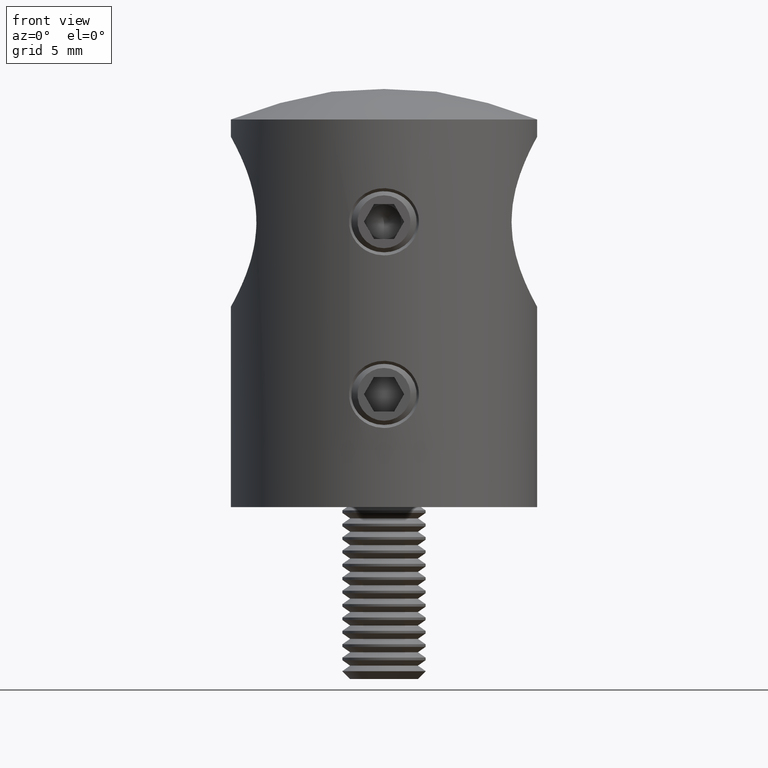
[diagram: clean part render]
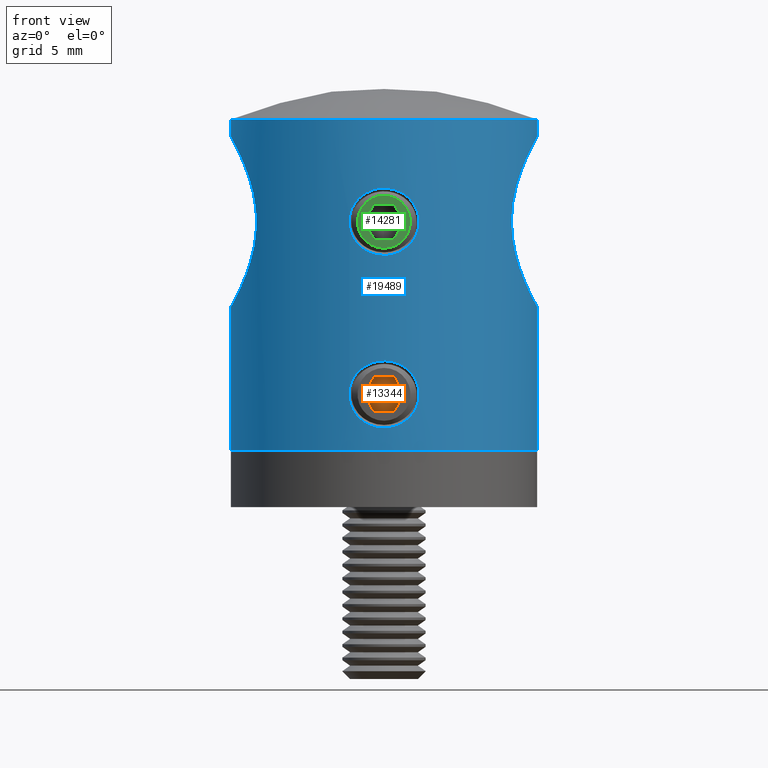
[diagram: same view with three faces highlighted in distinct colors, each labeled with its STEP entity id]
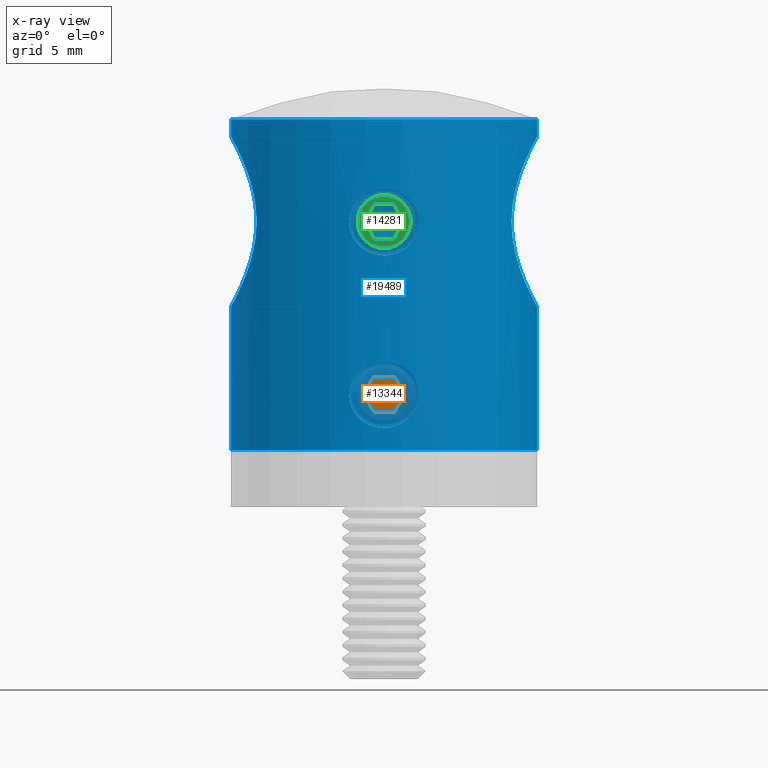
[diagram: x-ray of the same camera — body ghosted, the three highlighted faces saturated]
A machine part, front view with three faces highlighted in distinct colors.
The next image is the same camera in x-ray (body ghosted, the three faces saturated) — at least one of them is partly hidden behind the body in this view.
Their STEP definitions:

[orange] entity #13344 — the highlighted planar face has unit normal (0, -1, 0).
#344 = LINE ( 'NONE', #12696, #1133 ) ;
#1133 = VECTOR ( 'NONE', #16021, 1000.000000000000100 ) ;
#1794 = LINE ( 'NONE', #3753, #5854 ) ;
#3153 = ORIENTED_EDGE ( 'NONE', *, *, #15414, .T. ) ;
#3636 = PLANE ( 'NONE',  #20685 ) ;
#3753 = CARTESIAN_POINT ( 'NONE',  ( 3.000000000000000000, -1.443375672974064500, -3.918605484130491800E-016 ) ) ;
#4233 = DIRECTION ( 'NONE',  ( 0.0000000000000000000, 0.5000000000000001100, 0.8660254037844386000 ) ) ;
#4547 = DIRECTION ( 'NONE',  ( 0.0000000000000000000, -0.5000000000000001100, -0.8660254037844386000 ) ) ;
#4886 = CARTESIAN_POINT ( 'NONE',  ( 3.000000000000000000, 0.7216878364870326100, 1.250000000000000000 ) ) ;
#4946 = EDGE_LOOP ( 'NONE', ( #16603, #14391, #21229, #3153, #18370, #13923 ) ) ;
#5854 = VECTOR ( 'NONE', #17678, 1000.000000000000100 ) ;
#7053 = EDGE_CURVE ( 'NONE', #10747, #13678, #11564, .T. ) ;
#7076 = VERTEX_POINT ( 'NONE', #8689 ) ;
#7499 = VERTEX_POINT ( 'NONE', #14713 ) ;
#7625 = LINE ( 'NONE', #21490, #8160 ) ;
#8160 = VECTOR ( 'NONE', #4547, 1000.000000000000100 ) ;
#8265 = LINE ( 'NONE', #17504, #18535 ) ;
#8689 = CARTESIAN_POINT ( 'NONE',  ( 3.000000000000000000, 1.443375672974064800, -2.114391246060425900E-016 ) ) ;
#8888 = CARTESIAN_POINT ( 'NONE',  ( 3.000000000000000000, -0.7216878364870333900, -1.249999999999999800 ) ) ;
#9253 = DIRECTION ( 'NONE',  ( 0.0000000000000000000, -1.000000000000000000, 0.0000000000000000000 ) ) ;
#10747 = VERTEX_POINT ( 'NONE', #8888 ) ;
#10863 = VECTOR ( 'NONE', #4233, 1000.000000000000000 ) ;
#11277 = CARTESIAN_POINT ( 'NONE',  ( 3.000000000000000000, 0.7216878364870326100, -1.249999999999999800 ) ) ;
#11564 = LINE ( 'NONE', #18731, #21809 ) ;
#12696 = CARTESIAN_POINT ( 'NONE',  ( 3.000000000000000000, 1.443375672974064800, -2.114391246060425900E-016 ) ) ;
#13033 = LINE ( 'NONE', #11277, #10863 ) ;
#13344 = ADVANCED_FACE ( 'NONE', ( #16851 ), #3636, .T. ) ;
#13678 = VERTEX_POINT ( 'NONE', #21464 ) ;
#13864 = CARTESIAN_POINT ( 'NONE',  ( 3.000000000000000000, -2.165063509461096400, -1.249999999999999800 ) ) ;
#13923 = ORIENTED_EDGE ( 'NONE', *, *, #22368, .T. ) ;
#14365 = EDGE_CURVE ( 'NONE', #7076, #15828, #344, .T. ) ;
#14391 = ORIENTED_EDGE ( 'NONE', *, *, #20423, .T. ) ;
#14713 = CARTESIAN_POINT ( 'NONE',  ( 3.000000000000000000, -1.443375672974064500, -3.918605484130491800E-016 ) ) ;
#15414 = EDGE_CURVE ( 'NONE', #13678, #7076, #13033, .T. ) ;
#15828 = VERTEX_POINT ( 'NONE', #4886 ) ;
#16021 = DIRECTION ( 'NONE',  ( 0.0000000000000000000, -0.4999999999999998900, 0.8660254037844387100 ) ) ;
#16603 = ORIENTED_EDGE ( 'NONE', *, *, #19221, .T. ) ;
#16851 = FACE_OUTER_BOUND ( 'NONE', #4946, .T. ) ;
#17262 = DIRECTION ( 'NONE',  ( 0.0000000000000000000, 0.0000000000000000000, -1.000000000000000000 ) ) ;
#17504 = CARTESIAN_POINT ( 'NONE',  ( 3.000000000000000000, 0.7216878364870326100, 1.250000000000000000 ) ) ;
#17678 = DIRECTION ( 'NONE',  ( 0.0000000000000000000, 0.4999999999999996100, -0.8660254037844388200 ) ) ;
#18217 = VERTEX_POINT ( 'NONE', #18733 ) ;
#18370 = ORIENTED_EDGE ( 'NONE', *, *, #14365, .T. ) ;
#18535 = VECTOR ( 'NONE', #9253, 1000.000000000000000 ) ;
#18731 = CARTESIAN_POINT ( 'NONE',  ( 3.000000000000000000, -0.7216878364870333900, -1.249999999999999800 ) ) ;
#18733 = CARTESIAN_POINT ( 'NONE',  ( 3.000000000000000000, -0.7216878364870318300, 1.250000000000000000 ) ) ;
#19057 = DIRECTION ( 'NONE',  ( 1.000000000000000000, -0.0000000000000000000, 0.0000000000000000000 ) ) ;
#19221 = EDGE_CURVE ( 'NONE', #18217, #7499, #7625, .T. ) ;
#20423 = EDGE_CURVE ( 'NONE', #7499, #10747, #1794, .T. ) ;
#20685 = AXIS2_PLACEMENT_3D ( 'NONE', #13864, #19057, #17262 ) ;
#20762 = DIRECTION ( 'NONE',  ( 0.0000000000000000000, 1.000000000000000000, 0.0000000000000000000 ) ) ;
#21229 = ORIENTED_EDGE ( 'NONE', *, *, #7053, .T. ) ;
#21464 = CARTESIAN_POINT ( 'NONE',  ( 3.000000000000000000, 0.7216878364870326100, -1.249999999999999800 ) ) ;
#21490 = CARTESIAN_POINT ( 'NONE',  ( 3.000000000000000000, -0.7216878364870318300, 1.250000000000000000 ) ) ;
#21809 = VECTOR ( 'NONE', #20762, 1000.000000000000000 ) ;
#22368 = EDGE_CURVE ( 'NONE', #15828, #18217, #8265, .T. ) ;

[blue] entity #19489 — the highlighted cylindrical surface (bore or boss wall) has radius 11 mm, axis along (0, 0, 1).
#45 = CARTESIAN_POINT ( 'NONE',  ( 9.648512081601326800, 5.288360497444990900, 13.33447340568118200 ) ) ;
#105 = DIRECTION ( 'NONE',  ( 1.000000000000000000, 0.0000000000000000000, 0.0000000000000000000 ) ) ;
#120 = CARTESIAN_POINT ( 'NONE',  ( 9.882311817479491700, -4.833099761158375300, 12.67314814702374700 ) ) ;
#193 = CARTESIAN_POINT ( 'NONE',  ( 9.541437754094053100, -5.476577152540515100, 19.11591475201605700 ) ) ;
#293 = CARTESIAN_POINT ( 'NONE',  ( -1.397269774137160900, -10.91089534265097100, 14.39305190935820100 ) ) ;
#419 = CARTESIAN_POINT ( 'NONE',  ( 11.00000000000000000, -3.252606517456513300E-016, 10.29999999999999700 ) ) ;
#664 = CARTESIAN_POINT ( 'NONE',  ( 0.002621827913309108200, -10.99999968754628400, 18.81515378352823500 ) ) ;
#735 = CARTESIAN_POINT ( 'NONE',  ( 1.543890676010139400, -10.89363039259130200, 14.46927644187164600 ) ) ;
#753 = CARTESIAN_POINT ( 'NONE',  ( -0.9635496633443911800, -10.95771746515983500, 1.769627895335405900 ) ) ;
#802 = CARTESIAN_POINT ( 'NONE',  ( -1.268443744548116500, -10.93091935411460000, 18.50864464349973900 ) ) ;
#825 = CARTESIAN_POINT ( 'NONE',  ( -1.268443744210112200, -10.93091935414430800, 6.108644643610253100 ) ) ;
#874 = CARTESIAN_POINT ( 'NONE',  ( -2.463083399544349300, -10.72069121684273800, 16.87296431255212400 ) ) ;
#898 = CARTESIAN_POINT ( 'NONE',  ( -1.261211241404091900, -10.92831925419361200, 1.905472548706967000 ) ) ;
#949 = VERTEX_POINT ( 'NONE', #9815 ) ;
#999 = CARTESIAN_POINT ( 'NONE',  ( -9.404246883826671100, 5.706848822141821200, 18.56371187619917200 ) ) ;
#1046 = CARTESIAN_POINT ( 'NONE',  ( 0.8106894968027548200, -10.97114265804646700, 1.708653337313666300 ) ) ;
#1117 = B_SPLINE_CURVE_WITH_KNOTS ( 'NONE', 3,
 ( #12933, #21588, #21374, #753, #9224, #898, #21300, #11035, #2402, #2552, #14532, #16332, #12857, #13007, #2627, #4142, #2474, #14459, #21448, #18072, #16256, #17995, #6108, #12713, #2332, #9447, #14750, #4357, #9378, #19705, #16184, #7719, #19780, #21525, #11183, #825, #14678, #13375, #7941, #19997, #18570, #1195, #4651, #9739, #18505, #19933, #6407, #16771, #9596, #21802, #9667, #2917, #16695, #2848, #8154, #16548, #21731, #6333, #6184, #8013, #11476, #8084, #18428, #2991, #20223, #9887, #4727, #18282, #6470, #21941, #11403, #11621, #18354, #21662, #11326, #1273, #20147, #15111, #14817, #1046, #20072, #1123, #16838, #13153, #13225 ),
 .UNSPECIFIED., .T., .F.,
 ( 4, 3, 3, 3, 3, 3, 3, 3, 3, 3, 3, 3, 3, 3, 3, 3, 3, 3, 3, 3, 3, 3, 3, 3, 3, 3, 3, 3, 4 ),
 ( 0.0000000000000000000, 0.03571428571428571200, 0.07142857142857142500, 0.1071428571428571400, 0.1428571428571428500, 0.1785714285714285800, 0.2142857142857142700, 0.2500000000000000000, 0.2857142857142857000, 0.3214285714285714500, 0.3571428571428571500, 0.3928571428571428500, 0.4285714285714285500, 0.4642857142857143000, 0.5000000000000000000, 0.5357142857142857000, 0.5714285714285714000, 0.6071428571428571000, 0.6428571428571429000, 0.6785714285714286000, 0.7142857142857143000, 0.7500000000000000000, 0.7857142857142857000, 0.8214285714285714000, 0.8571428571428571000, 0.8928571428571429000, 0.9285714285714286000, 0.9642857142857143000, 1.000000000000000000 ),
 .UNSPECIFIED. ) ;
#1123 = CARTESIAN_POINT ( 'NONE',  ( 0.4897246382423631200, -10.98909321912860500, 1.631196561732932500 ) ) ;
#1148 = CARTESIAN_POINT ( 'NONE',  ( -10.56075521959791700, 3.096678220883588600, 21.67043277127627500 ) ) ;
#1195 = CARTESIAN_POINT ( 'NONE',  ( -0.1616220107861330000, -11.00003883473656800, 6.415315291332948500 ) ) ;
#1222 = CARTESIAN_POINT ( 'NONE',  ( -9.882311817479486400, 4.833099761158372600, 12.67314814702374400 ) ) ;
#1273 = CARTESIAN_POINT ( 'NONE',  ( 1.774878405260975000, -10.85586508052390200, 2.291099913721534000 ) ) ;
#1316 = CARTESIAN_POINT ( 'NONE',  ( 10.97695157601235900, -0.8154917404544900200, 10.34128971045530300 ) ) ;
#1391 = CARTESIAN_POINT ( 'NONE',  ( 10.99999999999999800, -0.4119544153468471200, 10.29999999999999500 ) ) ;
#1412 = EDGE_LOOP ( 'NONE', ( #21979 ) ) ;
#1442 = CARTESIAN_POINT ( 'NONE',  ( -9.154733802318572700, -6.098430320488778200, 16.82884321834455600 ) ) ;
#1591 = CARTESIAN_POINT ( 'NONE',  ( -10.56848592839725500, -3.070138311554853100, 21.68581601544170900 ) ) ;
#1614 = CARTESIAN_POINT ( 'NONE',  ( 10.22984273932647900, -4.054541376369454200, 20.97407856064159400 ) ) ;
#1689 = CARTESIAN_POINT ( 'NONE',  ( 9.205781148332759400, -6.021279925512389200, 17.39743835238008900 ) ) ;
#1767 = CARTESIAN_POINT ( 'NONE',  ( 9.875328383823170200, 4.851642139667733400, 12.68169681171467100 ) ) ;
#1844 = CARTESIAN_POINT ( 'NONE',  ( 9.362046769079290300, -5.775541901457285300, 18.37322836746236700 ) ) ;
#1915 = CARTESIAN_POINT ( 'NONE',  ( 9.655843362379474800, 5.275096090437347000, 19.48856493924066800 ) ) ;
#2014 = CARTESIAN_POINT ( 'NONE',  ( -1.533328306870229700, -10.89347143110832900, 14.48063127000943600 ) ) ;
#2088 = CARTESIAN_POINT ( 'NONE',  ( -1.777212278540741600, -10.85548324659036000, 14.69334404728969000 ) ) ;
#2238 = CARTESIAN_POINT ( 'NONE',  ( -2.463094693421274500, -10.72068862206341100, 15.92709007112410400 ) ) ;
#2282 = EDGE_CURVE ( 'NONE', #949, #949, #10541, .T. ) ;
#2284 = CARTESIAN_POINT ( 'NONE',  ( 10.34725143670187500, 3.748763762359424300, 11.57160730895325100 ) ) ;
#2308 = CARTESIAN_POINT ( 'NONE',  ( 2.089123661313935900, -10.79979455025595500, 17.74076931704600600 ) ) ;
#2332 = CARTESIAN_POINT ( 'NONE',  ( -2.463083399544349300, -10.72069121684273800, 4.472964312552125700 ) ) ;
#2378 = CARTESIAN_POINT ( 'NONE',  ( 1.995493121756457100, -10.81788920119303300, 14.92473889477621200 ) ) ;
#2402 = CARTESIAN_POINT ( 'NONE',  ( -1.661524859658452900, -10.87442308525437100, 2.181962713599229900 ) ) ;
#2453 = CARTESIAN_POINT ( 'NONE',  ( 0.3284569030260461900, -10.99628005262925400, 14.00036723653772300 ) ) ;
#2474 = CARTESIAN_POINT ( 'NONE',  ( -2.382999229848468600, -10.73896813810681100, 3.220662270662221900 ) ) ;
#2528 = CARTESIAN_POINT ( 'NONE',  ( 2.256830909749577800, -10.76619328780971300, 17.47192719234511700 ) ) ;
#2544 = VERTEX_POINT ( 'NONE', #8158 ) ;
#2552 = CARTESIAN_POINT ( 'NONE',  ( -1.777212278540741600, -10.85548324659036000, 2.293344047289692400 ) ) ;
#2602 = CARTESIAN_POINT ( 'NONE',  ( -2.020667218593132300E-015, -10.99999999999999800, 13.98484490069484600 ) ) ;
#2627 = CARTESIAN_POINT ( 'NONE',  ( -2.257482614945340400, -10.76605286276967800, 2.929546619533276000 ) ) ;
#2728 = CARTESIAN_POINT ( 'NONE',  ( -9.647514933004703900, 5.290201444760914900, 19.46247388205959400 ) ) ;
#2800 = CARTESIAN_POINT ( 'NONE',  ( -11.00000000000000000, -4.065758146820641600E-016, 10.29999999999999900 ) ) ;
#2802 = DIRECTION ( 'NONE',  ( -0.0000000000000000000, -0.0000000000000000000, 1.000000000000000000 ) ) ;
#2848 = CARTESIAN_POINT ( 'NONE',  ( 1.998357958369267700, -10.81735236367315700, 5.471525135721878800 ) ) ;
#2854 = ORIENTED_EDGE ( 'NONE', *, *, #21187, .T. ) ;
#2917 = CARTESIAN_POINT ( 'NONE',  ( 1.777126563584013900, -10.85549727912102600, 5.706738476233899100 ) ) ;
#2991 = CARTESIAN_POINT ( 'NONE',  ( 2.511715917072544300, -10.70940162436372500, 3.998297708608496300 ) ) ;
#3089 = CARTESIAN_POINT ( 'NONE',  ( -9.996537732736378200, -4.599883052709786000, 12.37464005127819400 ) ) ;
#3164 = CARTESIAN_POINT ( 'NONE',  ( -9.648512081601317900, -5.288360497444989200, 13.33447340568118400 ) ) ;
#3317 = CARTESIAN_POINT ( 'NONE',  ( -10.88660539605092800, -1.587461163400290900, 22.29327081037906300 ) ) ;
#3345 = CARTESIAN_POINT ( 'NONE',  ( 10.90835395832875700, -1.431035666601241800, 22.33324243480163700 ) ) ;
#3391 = CARTESIAN_POINT ( 'NONE',  ( -10.88034175087272000, 1.629824696895270100, 22.28170272155429300 ) ) ;
#3419 = CARTESIAN_POINT ( 'NONE',  ( 9.994595874194324400, -4.596398108278324700, 20.41514637220333500 ) ) ;
#3478 = CARTESIAN_POINT ( 'NONE',  ( 0.0000000000000000000, 0.0000000000000000000, 25.99999999999999600 ) ) ;
#3491 = CARTESIAN_POINT ( 'NONE',  ( 9.823416292433384100, -4.951332716768896500, 12.83170122485886600 ) ) ;
#3568 = CARTESIAN_POINT ( 'NONE',  ( 10.81560744150687200, -2.015142880694794400, 22.16107234963544000 ) ) ;
#3646 = CARTESIAN_POINT ( 'NONE',  ( 10.65712405073123900, -2.750588877777293100, 21.85910216543438600 ) ) ;
#3652 = CARTESIAN_POINT ( 'NONE',  ( 11.00000000000000000, 0.0000000000000000000, 10.29999999999999900 ) ) ;
#3804 = CARTESIAN_POINT ( 'NONE',  ( 11.00000000000000000, 0.4119544153468421300, 10.30000000000000100 ) ) ;
#3943 = AXIS2_PLACEMENT_3D ( 'NONE', #3478, #6807, #105 ) ;
#3979 = CARTESIAN_POINT ( 'NONE',  ( -2.495562452213592400, -10.71322910456338400, 16.08336297108577600 ) ) ;
#4044 = CARTESIAN_POINT ( 'NONE',  ( 2.495297978060719400, -10.71329013739285700, 16.08204341393588500 ) ) ;
#4116 = CARTESIAN_POINT ( 'NONE',  ( 1.774878405260975000, -10.85586508052390200, 14.69109991372153200 ) ) ;
#4142 = CARTESIAN_POINT ( 'NONE',  ( -2.320240922396904300, -10.75251050043824500, 3.075104445097748900 ) ) ;
#4191 = CARTESIAN_POINT ( 'NONE',  ( 2.320207892953276600, -10.75251762767572900, 17.32497216206398200 ) ) ;
#4265 = CARTESIAN_POINT ( 'NONE',  ( -2.177980241902248300, -10.78262365602053500, 17.61316799658935400 ) ) ;
#4357 = CARTESIAN_POINT ( 'NONE',  ( -2.319860156032100400, -10.75259265742242600, 4.925778238272567200 ) ) ;
#4537 = CARTESIAN_POINT ( 'NONE',  ( -10.05928916644563000, 4.453430819430038500, 12.22689457929945800 ) ) ;
#4610 = CARTESIAN_POINT ( 'NONE',  ( -10.23523940358924200, 4.040947010502997600, 11.81391594917569400 ) ) ;
#4651 = CARTESIAN_POINT ( 'NONE',  ( 0.002621827913299337800, -10.99999968754628400, 6.415153783528235300 ) ) ;
#4727 = CARTESIAN_POINT ( 'NONE',  ( 2.463009590041774600, -10.72070817434008000, 3.526680430776609800 ) ) ;
#4749 = CARTESIAN_POINT ( 'NONE',  ( -10.35109153156164300, 3.738197719850750100, 11.56340833636307500 ) ) ;
#4845 = CARTESIAN_POINT ( 'NONE',  ( 10.88928147642777600, -1.606873239554576800, 10.50161415780659300 ) ) ;
#4872 = CARTESIAN_POINT ( 'NONE',  ( 11.00000000000000000, 0.0000000000000000000, 0.0000000000000000000 ) ) ;
#4892 = CARTESIAN_POINT ( 'NONE',  ( -9.357734529854720800, -5.784913307303538600, 14.42355532554420000 ) ) ;
#5035 = EDGE_LOOP ( 'NONE', ( #2854 ) ) ;
#5048 = CARTESIAN_POINT ( 'NONE',  ( -9.262708643723197400, -5.933349042232531900, 17.83071913368764400 ) ) ;
#5073 = CARTESIAN_POINT ( 'NONE',  ( 10.23865757073148200, 4.032357685516512200, 20.99370868653107500 ) ) ;
#5126 = CARTESIAN_POINT ( 'NONE',  ( -11.00000000000000000, -4.065758146820641600E-016, 10.29999999999999900 ) ) ;
#5155 = CARTESIAN_POINT ( 'NONE',  ( 10.00013541345771500, -4.584346395257771400, 12.37109864061816600 ) ) ;
#5228 = CARTESIAN_POINT ( 'NONE',  ( 9.364778303763213100, -5.773464504138153200, 14.39169695136982900 ) ) ;
#5285 = EDGE_CURVE ( 'NONE', #20407, #20407, #8113, .T. ) ;
#5306 = CARTESIAN_POINT ( 'NONE',  ( 9.262708643723195600, 5.933349042232532800, 17.83071913368764400 ) ) ;
#5379 = CARTESIAN_POINT ( 'NONE',  ( 9.411849063529519600, 5.694304542915046100, 18.59632450029122500 ) ) ;
#5685 = CARTESIAN_POINT ( 'NONE',  ( 10.88669551587767400, 1.625843207734908100, 10.50636876088165500 ) ) ;
#5713 = CARTESIAN_POINT ( 'NONE',  ( -2.257482614959168500, -10.76605286276669600, 15.32954661957115100 ) ) ;
#5761 = CARTESIAN_POINT ( 'NONE',  ( 9.996537732736381800, 4.599883052709784300, 12.37464005127819500 ) ) ;
#5789 = CARTESIAN_POINT ( 'NONE',  ( 2.381829622713069700, -10.73922843645709300, 15.61740488451371400 ) ) ;
#5832 = EDGE_CURVE ( 'NONE', #13131, #13131, #1117, .T. ) ;
#5868 = CARTESIAN_POINT ( 'NONE',  ( 0.9623838866416711800, -10.95781991341035100, 14.16916257412396400 ) ) ;
#5938 = CARTESIAN_POINT ( 'NONE',  ( -2.495363705507605000, -10.71327480271960800, 16.71753173803435300 ) ) ;
#6017 = CARTESIAN_POINT ( 'NONE',  ( -1.543197030239320100, -10.89377639715052800, 18.33176205964109700 ) ) ;
#6086 = CARTESIAN_POINT ( 'NONE',  ( -2.087083062809130600, -10.80018908579545200, 17.74370445952115500 ) ) ;
#6108 = CARTESIAN_POINT ( 'NONE',  ( -2.511729057886776100, -10.70939854239878000, 4.157936335757463000 ) ) ;
#6184 = CARTESIAN_POINT ( 'NONE',  ( 2.383584876163826700, -10.73884196754026400, 4.778017131766939800 ) ) ;
#6333 = CARTESIAN_POINT ( 'NONE',  ( 2.320207892953276600, -10.75251762767572900, 4.924972162063986600 ) ) ;
#6359 = CARTESIAN_POINT ( 'NONE',  ( -9.288523322039354800, 5.893058497745284900, 17.98819897613592600 ) ) ;
#6407 = CARTESIAN_POINT ( 'NONE',  ( 1.116343252776195600, -10.94426300031197400, 6.169244775404881600 ) ) ;
#6431 = CARTESIAN_POINT ( 'NONE',  ( -10.97695157601235700, 0.8154917404544902400, 10.34128971045530000 ) ) ;
#6470 = CARTESIAN_POINT ( 'NONE',  ( 2.381829622718711000, -10.73922843645587700, 3.217404884529632800 ) ) ;
#6500 = CARTESIAN_POINT ( 'NONE',  ( -10.00013541345771500, 4.584346395257770500, 12.37109864061816600 ) ) ;
#6573 = CARTESIAN_POINT ( 'NONE',  ( -10.99905965626380700, 0.4319682143558776800, 22.49830428873474400 ) ) ;
#6649 = CARTESIAN_POINT ( 'NONE',  ( -10.65712405073123900, 2.750588877777294900, 21.85910216543440000 ) ) ;
#6797 = CARTESIAN_POINT ( 'NONE',  ( -9.369915670549833200, -5.762779879413706400, 18.41008764505288700 ) ) ;
#6807 = DIRECTION ( 'NONE',  ( -0.0000000000000000000, -0.0000000000000000000, 1.000000000000000000 ) ) ;
#6824 = CARTESIAN_POINT ( 'NONE',  ( 10.88034175087272500, -1.629824696895275900, 22.28170272155429300 ) ) ;
#6873 = CARTESIAN_POINT ( 'NONE',  ( -9.182846360408930800, -6.056809541581206000, 17.23151101186772000 ) ) ;
#6905 = CARTESIAN_POINT ( 'NONE',  ( 9.295422111209905600, 5.882183215968437300, 18.02788356252803900 ) ) ;
#6979 = CARTESIAN_POINT ( 'NONE',  ( 10.56075521959791500, -3.096678220883586800, 21.67043277127626800 ) ) ;
#7055 = CARTESIAN_POINT ( 'NONE',  ( 9.548936329887283100, 5.463500988949929700, 19.14152131049772300 ) ) ;
#7133 = CARTESIAN_POINT ( 'NONE',  ( 10.77884143829793800, -2.202631448935040000, 22.09190641235104000 ) ) ;
#7162 = CARTESIAN_POINT ( 'NONE',  ( -1.115993498471008700, -10.94431255610991500, 14.23051304831070000 ) ) ;
#7241 = CARTESIAN_POINT ( 'NONE',  ( -2.020667218593132300E-015, -10.99999999999999800, 13.98484490069484600 ) ) ;
#7284 = CARTESIAN_POINT ( 'NONE',  ( 10.23201466657478100, 4.049143934664146900, 11.82103939613443400 ) ) ;
#7312 = CARTESIAN_POINT ( 'NONE',  ( -1.996072047024378000, -10.81778173646242000, 14.92547899507782500 ) ) ;
#7467 = CARTESIAN_POINT ( 'NONE',  ( -2.511729057886776100, -10.70939854239878000, 16.55793633575457200 ) ) ;
#7546 = CARTESIAN_POINT ( 'NONE',  ( -0.4903270790838651400, -10.98906635504204500, 18.76868820874940300 ) ) ;
#7618 = CARTESIAN_POINT ( 'NONE',  ( 0.6509923734586801100, -10.98190638562795800, 14.06202588692813500 ) ) ;
#7696 = CARTESIAN_POINT ( 'NONE',  ( -2.430803093581094000, -10.72810763096586800, 17.02839688706989600 ) ) ;
#7719 = CARTESIAN_POINT ( 'NONE',  ( -1.996185883738268000, -10.81775451556606900, 5.474240922415229500 ) ) ;
#7720 = DIRECTION ( 'NONE',  ( -0.0000000000000000000, -0.0000000000000000000, 1.000000000000000000 ) ) ;
#7769 = CARTESIAN_POINT ( 'NONE',  ( 2.318934602487287200, -10.75279230290379400, 15.47208026934992200 ) ) ;
#7840 = CARTESIAN_POINT ( 'NONE',  ( -0.9631123533028067600, -10.95775591053731500, 18.63054673490993100 ) ) ;
#7941 = CARTESIAN_POINT ( 'NONE',  ( -0.6530340315527127800, -10.98180644576739700, 6.337544000683097400 ) ) ;
#7965 = CARTESIAN_POINT ( 'NONE',  ( -9.547459403721239500, 5.466075739822138700, 13.66354435040355300 ) ) ;
#8013 = CARTESIAN_POINT ( 'NONE',  ( 2.431469541523701300, -10.72795581613253500, 4.625850491968456000 ) ) ;
#8019 = ORIENTED_EDGE ( 'NONE', *, *, #20887, .T. ) ;
#8039 = CARTESIAN_POINT ( 'NONE',  ( -10.99999999999999800, 0.4119544153468474600, 10.29999999999999700 ) ) ;
#8084 = CARTESIAN_POINT ( 'NONE',  ( 2.495530447802617200, -10.71323517469580200, 4.316057407643017800 ) ) ;
#8113 = CIRCLE ( 'NONE', #11537, 11.00000000000000000 ) ;
#8154 = CARTESIAN_POINT ( 'NONE',  ( 2.089123661313935900, -10.79979455025595500, 5.340769317046009800 ) ) ;
#8158 = CARTESIAN_POINT ( 'NONE',  ( 10.99999999999999600, 0.0000000000000000000, 23.74878637916747000 ) ) ;
#8254 = CARTESIAN_POINT ( 'NONE',  ( -9.364778303763213100, 5.773464504138154000, 14.39169695136983200 ) ) ;
#8326 = CARTESIAN_POINT ( 'NONE',  ( -10.23865757073147800, -4.032357685516514000, 20.99370868653107500 ) ) ;
#8350 = CARTESIAN_POINT ( 'NONE',  ( 10.56516037208888100, -3.081656113116340900, 11.12078256614181400 ) ) ;
#8396 = CARTESIAN_POINT ( 'NONE',  ( -9.295422111209902000, -5.882183215968435500, 18.02788356252802900 ) ) ;
#8472 = CARTESIAN_POINT ( 'NONE',  ( -10.91341900764949100, -1.391812421171590800, 22.34254261676389700 ) ) ;
#8571 = CARTESIAN_POINT ( 'NONE',  ( 10.99905965626380100, -0.4319682143558784500, 22.49830428873475100 ) ) ;
#8643 = CARTESIAN_POINT ( 'NONE',  ( 9.357734529854720800, 5.784913307303538600, 14.42355532554420200 ) ) ;
#8723 = CARTESIAN_POINT ( 'NONE',  ( 9.152699255644691300, 6.101483401673093000, 16.01703893293871100 ) ) ;
#8798 = CARTESIAN_POINT ( 'NONE',  ( 9.159751136064910400, -6.090938158330283500, 16.79016624204473700 ) ) ;
#8869 = CARTESIAN_POINT ( 'NONE',  ( 9.257007648696458100, -5.942224152987878800, 17.79307836241349600 ) ) ;
#8895 = CARTESIAN_POINT ( 'NONE',  ( -0.6586619930911564700, -10.98452728325967300, 14.04785758938482100 ) ) ;
#9046 = CARTESIAN_POINT ( 'NONE',  ( -2.382999229834640100, -10.73896813810979400, 15.62066227062434400 ) ) ;
#9127 = CARTESIAN_POINT ( 'NONE',  ( -2.320240922396904300, -10.75251050043824500, 15.47510444509774700 ) ) ;
#9224 = CARTESIAN_POINT ( 'NONE',  ( -1.115993498496286900, -10.94431255610769100, 1.830513048320795400 ) ) ;
#9278 = CARTESIAN_POINT ( 'NONE',  ( 1.535022905045015500, -10.89323192800198800, 18.31811697579191600 ) ) ;
#9353 = CARTESIAN_POINT ( 'NONE',  ( 1.660782927847469700, -10.87454360747016800, 18.21873868081512500 ) ) ;
#9378 = CARTESIAN_POINT ( 'NONE',  ( -2.256864148927033100, -10.76618397735132300, 5.071739856433886500 ) ) ;
#9428 = CARTESIAN_POINT ( 'NONE',  ( 2.511799944583926100, -10.70938191707799400, 16.55668838989981500 ) ) ;
#9447 = CARTESIAN_POINT ( 'NONE',  ( -2.430803093581094000, -10.72810763096586800, 4.628396887069898800 ) ) ;
#9502 = CARTESIAN_POINT ( 'NONE',  ( 1.890372269886392700, -10.83698242449020200, 14.80201164964647400 ) ) ;
#9574 = CARTESIAN_POINT ( 'NONE',  ( -0.6530340314932273600, -10.98180644577005100, 18.73754400069448100 ) ) ;
#9596 = CARTESIAN_POINT ( 'NONE',  ( 1.399033590713174800, -10.91066932007638700, 6.005811658922017800 ) ) ;
#9622 = CARTESIAN_POINT ( 'NONE',  ( -9.186070511604013300, 6.051171545997140900, 17.19691923427018000 ) ) ;
#9667 = CARTESIAN_POINT ( 'NONE',  ( 1.660782927785467800, -10.87454360748031900, 5.818738680863162000 ) ) ;
#9692 = CARTESIAN_POINT ( 'NONE',  ( -9.287385638928908400, 5.895229317790464700, 14.78182133336428600 ) ) ;
#9739 = CARTESIAN_POINT ( 'NONE',  ( 0.3311095053121640400, -10.99992139316571600, 6.414830767918807900 ) ) ;
#9767 = CARTESIAN_POINT ( 'NONE',  ( -9.159751136064912200, 6.090938158330279100, 16.79016624204474800 ) ) ;
#9815 = CARTESIAN_POINT ( 'NONE',  ( -2.020667218593132300E-015, -10.99999999999999800, 13.98484490069484600 ) ) ;
#9887 = CARTESIAN_POINT ( 'NONE',  ( 2.495297978060744700, -10.71329013739285200, 3.682043413930197400 ) ) ;
#10063 = CARTESIAN_POINT ( 'NONE',  ( -11.00042874672051100, -0.1790107633385605900, 22.50077315433565400 ) ) ;
#10126 = CARTESIAN_POINT ( 'NONE',  ( -2.020667218593132300E-015, -10.99999999999999800, 1.584844900694847100 ) ) ;
#10145 = CARTESIAN_POINT ( 'NONE',  ( -10.55980625606059700, -3.085983629272201200, 11.13443178477246500 ) ) ;
#10223 = CARTESIAN_POINT ( 'NONE',  ( -9.655843362379471300, -5.275096090437347800, 19.48856493924067100 ) ) ;
#10324 = CARTESIAN_POINT ( 'NONE',  ( 10.91341900764949600, 1.391812421171593000, 22.34254261676390000 ) ) ;
#10399 = CARTESIAN_POINT ( 'NONE',  ( 9.542046598227907200, 5.475560630793905800, 13.68158294172838300 ) ) ;
#10467 = CARTESIAN_POINT ( 'NONE',  ( 10.97324043956128000, 0.7936138331961980500, 22.45163438274044800 ) ) ;
#10536 = CARTESIAN_POINT ( 'NONE',  ( 9.547459403721244800, -5.466075739822142200, 13.66354435040356000 ) ) ;
#10541 = B_SPLINE_CURVE_WITH_KNOTS ( 'NONE', 3,
 ( #7241, #12455, #8895, #17525, #7162, #19463, #293, #2014, #17596, #2088, #14213, #7312, #19393, #19534, #5713, #9127, #9046, #10795, #2238, #3979, #12531, #14354, #7467, #5938, #874, #7696, #21425, #16452, #21503, #4265, #6086, #19610, #17975, #16381, #6017, #802, #7840, #14579, #9574, #7546, #12912, #18189, #664, #12757, #11304, #19911, #21637, #11085, #12684, #9278, #9353, #11017, #18051, #14655, #2308, #14509, #2528, #4191, #12981, #21348, #16305, #19759, #9428, #18116, #14431, #4044, #11160, #16161, #5789, #7769, #17899, #19682, #19837, #2378, #9502, #4116, #735, #16230, #5868, #21568, #7618, #12833, #2453, #11231, #2602 ),
 .UNSPECIFIED., .T., .F.,
 ( 4, 3, 3, 3, 3, 3, 3, 3, 3, 3, 3, 3, 3, 3, 3, 3, 3, 3, 3, 3, 3, 3, 3, 3, 3, 3, 3, 3, 4 ),
 ( 0.0000000000000000000, 0.03571428571428571200, 0.07142857142857142500, 0.1071428571428571400, 0.1428571428571428500, 0.1785714285714285800, 0.2142857142857142700, 0.2500000000000000000, 0.2857142857142857000, 0.3214285714285714500, 0.3571428571428571500, 0.3928571428571428500, 0.4285714285714285500, 0.4642857142857143000, 0.5000000000000000000, 0.5357142857142857000, 0.5714285714285714000, 0.6071428571428571000, 0.6428571428571429000, 0.6785714285714286000, 0.7142857142857143000, 0.7500000000000000000, 0.7857142857142857000, 0.8214285714285714000, 0.8571428571428571000, 0.8928571428571429000, 0.9285714285714286000, 0.9642857142857143000, 1.000000000000000000 ),
 .UNSPECIFIED. ) ;
#10694 = CARTESIAN_POINT ( 'NONE',  ( 10.55980625606059000, 3.085983629272201600, 11.13443178477246100 ) ) ;
#10776 = CARTESIAN_POINT ( 'NONE',  ( -10.99999999999999800, 0.0000000000000000000, 10.29999999999999900 ) ) ;
#10795 = CARTESIAN_POINT ( 'NONE',  ( -2.430626934628957100, -10.72814813956344100, 15.77081717116243500 ) ) ;
#10885 = ORIENTED_EDGE ( 'NONE', *, *, #5832, .T. ) ;
#11017 = CARTESIAN_POINT ( 'NONE',  ( 1.777126563584013900, -10.85549727912102600, 18.10673847623389300 ) ) ;
#11035 = CARTESIAN_POINT ( 'NONE',  ( -1.533328306870229700, -10.89347143110832900, 2.080631270009437800 ) ) ;
#11085 = CARTESIAN_POINT ( 'NONE',  ( 1.263044276381334100, -10.92810671215078600, 18.49350634205210800 ) ) ;
#11160 = CARTESIAN_POINT ( 'NONE',  ( 2.463009590041774600, -10.72070817434008000, 15.92668043077660700 ) ) ;
#11183 = CARTESIAN_POINT ( 'NONE',  ( -1.543197030239268600, -10.89377639715053700, 5.931762059629532400 ) ) ;
#11231 = CARTESIAN_POINT ( 'NONE',  ( 0.1643935056931485900, -11.00000000000000000, 13.98484488613688500 ) ) ;
#11257 = CARTESIAN_POINT ( 'NONE',  ( 0.0000000000000000000, 0.0000000000000000000, 23.74878637916747000 ) ) ;
#11304 = CARTESIAN_POINT ( 'NONE',  ( 0.6619940356628312200, -10.98427163761045800, 18.75101510548229200 ) ) ;
#11305 = EDGE_CURVE ( 'NONE', #2544, #2544, #18775, .T. ) ;
#11326 = CARTESIAN_POINT ( 'NONE',  ( 1.890372269886328600, -10.83698242449021300, 2.402011649646420100 ) ) ;
#11354 = CARTESIAN_POINT ( 'NONE',  ( -9.205781148332759400, 6.021279925512387400, 17.39743835238009200 ) ) ;
#11403 = CARTESIAN_POINT ( 'NONE',  ( 2.256039582255863900, -10.76635616935171300, 2.926755654170211800 ) ) ;
#11476 = CARTESIAN_POINT ( 'NONE',  ( 2.463499994663159100, -10.72059549541417000, 4.470953949805736900 ) ) ;
#11504 = CARTESIAN_POINT ( 'NONE',  ( -10.05375444080991800, 4.465900659990700700, 20.55976037867541000 ) ) ;
#11537 = AXIS2_PLACEMENT_3D ( 'NONE', #13183, #2802, #16652 ) ;
#11567 = ORIENTED_EDGE ( 'NONE', *, *, #11305, .F. ) ;
#11621 = CARTESIAN_POINT ( 'NONE',  ( 2.178857699620390800, -10.78245327803794100, 2.788117446777010700 ) ) ;
#11653 = CARTESIAN_POINT ( 'NONE',  ( -10.56516037208888300, 3.081656113116340500, 11.12078256614181100 ) ) ;
#11798 = CARTESIAN_POINT ( 'NONE',  ( -9.411849063529519600, -5.694304542915048700, 18.59632450029122100 ) ) ;
#11866 = CARTESIAN_POINT ( 'NONE',  ( -10.00363043224887400, -4.584473309947978400, 20.44285449540665000 ) ) ;
#11943 = CARTESIAN_POINT ( 'NONE',  ( -10.70011745089923100, -2.557856534737484600, 10.85862283480468400 ) ) ;
#11970 = CARTESIAN_POINT ( 'NONE',  ( 9.653232611197095600, -5.279764526992450700, 13.31975750584613700 ) ) ;
#12018 = CARTESIAN_POINT ( 'NONE',  ( -9.884558394909735300, -4.832955114603747000, 20.14278198770373500 ) ) ;
#12048 = CARTESIAN_POINT ( 'NONE',  ( 9.182846360408934300, 6.056809541581205100, 17.23151101186772000 ) ) ;
#12118 = CARTESIAN_POINT ( 'NONE',  ( 9.182824149353347600, -6.056814456260993600, 15.57100690659151700 ) ) ;
#12201 = CARTESIAN_POINT ( 'NONE',  ( 10.56848592839725500, 3.070138311554854400, 21.68581601544172000 ) ) ;
#12276 = CARTESIAN_POINT ( 'NONE',  ( 10.88660539605092300, 1.587461163400291300, 22.29327081037905200 ) ) ;
#12455 = CARTESIAN_POINT ( 'NONE',  ( -0.3315329493984952600, -10.99999999999999600, 13.98484493005393500 ) ) ;
#12465 = B_SPLINE_CURVE_WITH_KNOTS ( 'NONE', 3,
 ( #2800, #8039, #6431, #16796, #15134, #20027, #11653, #4749, #4610, #4537, #6500, #1222, #20173, #18595, #7965, #8254, #9692, #16720, #16649, #20101, #9767, #9622, #11354, #21824, #6359, #21892, #999, #13106, #2728, #14842, #21756, #16574, #11504, #18457, #13324, #1148, #6649, #20401, #13776, #3391, #17247, #18813, #6573, #10063, #13698, #22107, #18665, #8472, #3317, #15508, #16943, #20542, #1591, #15430, #8326, #11866, #12018, #10223, #22040, #11798, #6797, #8396, #5048, #6873, #1442, #13542, #15285, #17010, #4892, #18963, #3164, #20321, #3089, #18740, #22261, #20470, #10145, #17088, #11943, #17168, #22180, #13470, #15208, #5126 ),
 .UNSPECIFIED., .T., .F.,
 ( 4, 2, 2, 2, 2, 2, 2, 2, 2, 2, 2, 2, 2, 2, 2, 2, 2, 2, 2, 2, 2, 2, 2, 2, 2, 2, 2, 2, 2, 2, 2, 2, 2, 2, 2, 2, 2, 2, 2, 2, 2, 4 ),
 ( 0.0000000000000000000, 0.001216736210685104500, 0.002433472421370208600, 0.003650208632055312900, 0.004866944842740417200, 0.005475312948082970200, 0.006083681053425524100, 0.007300417264110637000, 0.008517153474795749100, 0.009733889685480860400, 0.01034225779082341600, 0.01095062589616597300, 0.01155899400150852900, 0.01216736210685108600, 0.01338409831753618700, 0.01399246642287873400, 0.01460083452822128100, 0.01581757073890636600, 0.01703430694959145000, 0.01764267505493399100, 0.01825104316027653000, 0.01946777937096160600, 0.02007614747630414800, 0.02068451558164668600, 0.02129288368698922800, 0.02190125179233176300, 0.02311798800301683900, 0.02433472421370190900, 0.02555146042438697800, 0.02676819663507204800, 0.02737656474041458300, 0.02798493284575711800, 0.02920166905644219400, 0.03041840526712729200, 0.03163514147781237900, 0.03285187768849747600, 0.03406861389918256600, 0.03528535010986765700, 0.03589371821521019500, 0.03650208632055274000, 0.03771882253123783100, 0.03893555874192292100 ),
 .UNSPECIFIED. ) ;
#12507 = CARTESIAN_POINT ( 'NONE',  ( 10.82153467679176400, 2.008721309774863500, 10.62652596293656300 ) ) ;
#12531 = CARTESIAN_POINT ( 'NONE',  ( -2.511703974928243700, -10.70940442520010400, 16.24273929157860500 ) ) ;
#12684 = CARTESIAN_POINT ( 'NONE',  ( 1.399033590713174800, -10.91066932007638700, 18.40581165892201200 ) ) ;
#12713 = CARTESIAN_POINT ( 'NONE',  ( -2.495363705507605000, -10.71327480271960800, 4.317531738034352500 ) ) ;
#12757 = CARTESIAN_POINT ( 'NONE',  ( 0.3311095054345719000, -10.99992139316568700, 18.81483076791868600 ) ) ;
#12833 = CARTESIAN_POINT ( 'NONE',  ( 0.4897246382423631200, -10.98909321912860500, 14.03119656173292800 ) ) ;
#12857 = CARTESIAN_POINT ( 'NONE',  ( -2.087678545343330000, -10.80007399471471700, 2.657151107508259000 ) ) ;
#12912 = CARTESIAN_POINT ( 'NONE',  ( -0.3276201266745030200, -10.99632626431403900, 18.79983241680432100 ) ) ;
#12933 = CARTESIAN_POINT ( 'NONE',  ( -2.020667218593132300E-015, -10.99999999999999800, 1.584844900694847100 ) ) ;
#12981 = CARTESIAN_POINT ( 'NONE',  ( 2.383584876156975800, -10.73884196754174300, 17.17801713178284500 ) ) ;
#13007 = CARTESIAN_POINT ( 'NONE',  ( -2.179285043678576000, -10.78236625296386300, 2.788823219965029600 ) ) ;
#13048 = CYLINDRICAL_SURFACE ( 'NONE', #3943, 10.99999999999999800 ) ;
#13106 = CARTESIAN_POINT ( 'NONE',  ( -9.541437754094056700, 5.476577152540516000, 19.11591475201606400 ) ) ;
#13131 = VERTEX_POINT ( 'NONE', #10126 ) ;
#13153 = CARTESIAN_POINT ( 'NONE',  ( 0.1643935056628486900, -11.00000000000000000, 1.584844886136918000 ) ) ;
#13183 = CARTESIAN_POINT ( 'NONE',  ( 0.0000000000000000000, 0.0000000000000000000, 0.0000000000000000000 ) ) ;
#13225 = CARTESIAN_POINT ( 'NONE',  ( -2.020667218593132300E-015, -10.99999999999999800, 1.584844900694847100 ) ) ;
#13324 = CARTESIAN_POINT ( 'NONE',  ( -10.34600107115468500, 3.752229823401759500, 21.22572781584416600 ) ) ;
#13351 = CARTESIAN_POINT ( 'NONE',  ( 11.00000000000000000, -3.252606517456513300E-016, 10.29999999999999700 ) ) ;
#13375 = CARTESIAN_POINT ( 'NONE',  ( -0.8104466578491685800, -10.97117418873381900, 6.291497780559771200 ) ) ;
#13470 = CARTESIAN_POINT ( 'NONE',  ( -10.97668327814536400, -0.8221493798894822200, 10.34175555824984000 ) ) ;
#13542 = CARTESIAN_POINT ( 'NONE',  ( -9.152699255644689600, -6.101483401673090300, 16.01703893293871100 ) ) ;
#13698 = CARTESIAN_POINT ( 'NONE',  ( -10.99515712557069400, -0.3851602843953686500, 22.49128501828072800 ) ) ;
#13729 = CARTESIAN_POINT ( 'NONE',  ( 10.34600107115468700, -3.752229823401762600, 21.22572781584417700 ) ) ;
#13776 = CARTESIAN_POINT ( 'NONE',  ( -10.81560744150687700, 2.015142880694789500, 22.16107234963545000 ) ) ;
#13787 = EDGE_LOOP ( 'NONE', ( #11567 ) ) ;
#13799 = CARTESIAN_POINT ( 'NONE',  ( 9.404246883826667500, -5.706848822141821200, 18.56371187619916800 ) ) ;
#13871 = CARTESIAN_POINT ( 'NONE',  ( 11.00042874672050700, 0.1790107633385608100, 22.50077315433566100 ) ) ;
#13948 = CARTESIAN_POINT ( 'NONE',  ( 9.876850331807260000, -4.844238823729229500, 20.11236126726327800 ) ) ;
#14019 = CARTESIAN_POINT ( 'NONE',  ( 10.99515712557069600, 0.3851602843953721400, 22.49128501828072000 ) ) ;
#14141 = B_SPLINE_CURVE_WITH_KNOTS ( 'NONE', 3,
 ( #13351, #1391, #1316, #4845, #16967, #18692, #8350, #20426, #17195, #22287, #5155, #120, #3491, #11970, #10536, #5228, #15533, #12118, #20870, #20952, #8798, #20725, #1689, #8869, #15611, #1844, #13799, #193, #15756, #22355, #13948, #3419, #17349, #1614, #13729, #6979, #3646, #7133, #3568, #6824, #3345, #17420, #8571, #13871, #14019, #10467, #15459, #10324, #12276, #20793, #19206, #17272, #12201, #19066, #5073, #15679, #18911, #1915, #7055, #5379, #20650, #6905, #5306, #12048, #18992, #8723, #19131, #17499, #8643, #10399, #45, #1767, #5761, #7284, #2284, #17646, #10694, #15834, #21177, #12507, #5685, #15977, #3804, #419 ),
 .UNSPECIFIED., .T., .F.,
 ( 4, 2, 2, 2, 2, 2, 2, 2, 2, 2, 2, 2, 2, 2, 2, 2, 2, 2, 2, 2, 2, 2, 2, 2, 2, 2, 2, 2, 2, 2, 2, 2, 2, 2, 2, 2, 2, 2, 2, 2, 2, 4 ),
 ( 0.0000000000000000000, 0.001216736210685103400, 0.002433472421370206800, 0.003650208632055310300, 0.004866944842740413700, 0.005475312948082967600, 0.006083681053425521500, 0.007300417264110631800, 0.008517153474795743900, 0.009733889685480853400, 0.01034225779082340900, 0.01095062589616596600, 0.01155899400150852000, 0.01216736210685107800, 0.01338409831753618000, 0.01399246642287872400, 0.01460083452822126900, 0.01581757073890635600, 0.01703430694959143900, 0.01764267505493398100, 0.01825104316027652300, 0.01946777937096160300, 0.02007614747630414400, 0.02068451558164668600, 0.02129288368698922100, 0.02190125179233175900, 0.02311798800301683900, 0.02433472421370191600, 0.02555146042438699600, 0.02676819663507206900, 0.02737656474041461100, 0.02798493284575714900, 0.02920166905644223600, 0.03041840526712732300, 0.03163514147781240600, 0.03285187768849749000, 0.03406861389918258000, 0.03528535010986766400, 0.03589371821521020900, 0.03650208632055274700, 0.03771882253123783800, 0.03893555874192292800 ),
 .UNSPECIFIED. ) ;
#14213 = CARTESIAN_POINT ( 'NONE',  ( -1.892899697437106800, -10.83654340792404500, 14.80472538099371200 ) ) ;
#14354 = CARTESIAN_POINT ( 'NONE',  ( -2.511716516407509900, -10.70940148379944100, 16.40033781366658500 ) ) ;
#14398 = FACE_BOUND ( 'NONE', #1412, .T. ) ;
#14431 = CARTESIAN_POINT ( 'NONE',  ( 2.511631889561162000, -10.70942133164945500, 16.23990702731718000 ) ) ;
#14459 = CARTESIAN_POINT ( 'NONE',  ( -2.430626934630721900, -10.72814813956303400, 3.370817171176732100 ) ) ;
#14509 = CARTESIAN_POINT ( 'NONE',  ( 2.179889364258655400, -10.78223673683874400, 17.61001349837584600 ) ) ;
#14532 = CARTESIAN_POINT ( 'NONE',  ( -1.892899697423030100, -10.83654340792634900, 2.404725380980155000 ) ) ;
#14579 = CARTESIAN_POINT ( 'NONE',  ( -0.8104466576801517800, -10.97117418874867300, 18.69149778061502700 ) ) ;
#14655 = CARTESIAN_POINT ( 'NONE',  ( 1.998357958369216600, -10.81735236367316800, 17.87152513571616200 ) ) ;
#14678 = CARTESIAN_POINT ( 'NONE',  ( -0.9631123533028165300, -10.95775591053731500, 6.230546734909931500 ) ) ;
#14750 = CARTESIAN_POINT ( 'NONE',  ( -2.382856163137168100, -10.73900133749352800, 4.779816620111248000 ) ) ;
#14817 = CARTESIAN_POINT ( 'NONE',  ( 0.9623838866416614100, -10.95781991341035100, 1.769162574123964900 ) ) ;
#14842 = CARTESIAN_POINT ( 'NONE',  ( -9.818003290387908400, 4.962056561256334300, 19.95341231550813500 ) ) ;
#15111 = CARTESIAN_POINT ( 'NONE',  ( 1.265772666319474600, -10.93117442413812100, 1.890181047744562000 ) ) ;
#15134 = CARTESIAN_POINT ( 'NONE',  ( -10.82349510489187400, 1.998464203924864100, 10.62285073282916600 ) ) ;
#15208 = CARTESIAN_POINT ( 'NONE',  ( -11.00000000000000000, -0.4119544153468410200, 10.30000000000000100 ) ) ;
#15285 = CARTESIAN_POINT ( 'NONE',  ( -9.179891148193682700, -6.061232615172923700, 15.60271832034517000 ) ) ;
#15430 = CARTESIAN_POINT ( 'NONE',  ( -10.35569616419129300, -3.725345759223079000, 21.24638000732666800 ) ) ;
#15459 = CARTESIAN_POINT ( 'NONE',  ( 10.95673552425202500, 0.9948883876327665500, 22.42172331346568700 ) ) ;
#15468 = FACE_OUTER_BOUND ( 'NONE', #19651, .T. ) ;
#15508 = CARTESIAN_POINT ( 'NONE',  ( -10.82333026450579500, -1.973254160026633800, 22.17554688403684400 ) ) ;
#15533 = CARTESIAN_POINT ( 'NONE',  ( 9.287385638928912000, -5.895229317790466400, 14.78182133336428600 ) ) ;
#15611 = CARTESIAN_POINT ( 'NONE',  ( 9.288523322039353000, -5.893058497745282200, 17.98819897613592300 ) ) ;
#15679 = CARTESIAN_POINT ( 'NONE',  ( 10.00363043224886900, 4.584473309947980200, 20.44285449540664600 ) ) ;
#15756 = CARTESIAN_POINT ( 'NONE',  ( 9.647514933004712700, -5.290201444760914900, 19.46247388205958400 ) ) ;
#15834 = CARTESIAN_POINT ( 'NONE',  ( 10.65567692228154900, 2.736668129976453000, 10.94471346896226500 ) ) ;
#15933 = EDGE_LOOP ( 'NONE', ( #10885 ) ) ;
#15977 = CARTESIAN_POINT ( 'NONE',  ( 10.97668327814536400, 0.8221493798894867800, 10.34175555824983800 ) ) ;
#16161 = CARTESIAN_POINT ( 'NONE',  ( 2.430721202022829700, -10.72812621128730400, 15.77131744761732800 ) ) ;
#16184 = CARTESIAN_POINT ( 'NONE',  ( -2.087083062809130600, -10.80018908579545200, 5.343704459521158700 ) ) ;
#16230 = CARTESIAN_POINT ( 'NONE',  ( 1.265772666088006400, -10.93117442415845100, 14.29018104766522700 ) ) ;
#16256 = CARTESIAN_POINT ( 'NONE',  ( -2.511703974928243700, -10.70940442520010400, 3.842739291575714100 ) ) ;
#16273 = FACE_BOUND ( 'NONE', #15933, .T. ) ;
#16305 = CARTESIAN_POINT ( 'NONE',  ( 2.463499994663159100, -10.72059549541417000, 16.87095394980573500 ) ) ;
#16332 = CARTESIAN_POINT ( 'NONE',  ( -1.996072047008083900, -10.81778173646557100, 2.525478995051488900 ) ) ;
#16381 = CARTESIAN_POINT ( 'NONE',  ( -1.776361239528236000, -10.85562254072522800, 18.10747495177491800 ) ) ;
#16406 = DIRECTION ( 'NONE',  ( 1.000000000000000000, 0.0000000000000000000, 0.0000000000000000000 ) ) ;
#16452 = CARTESIAN_POINT ( 'NONE',  ( -2.319860156032100400, -10.75259265742242600, 17.32577823827256900 ) ) ;
#16548 = CARTESIAN_POINT ( 'NONE',  ( 2.179889364258604400, -10.78223673683875500, 5.210013498370140700 ) ) ;
#16574 = CARTESIAN_POINT ( 'NONE',  ( -9.994595874194320800, 4.596398108278324700, 20.41514637220333100 ) ) ;
#16649 = CARTESIAN_POINT ( 'NONE',  ( -9.154625459611534000, 6.098592904478553400, 15.97188860518444100 ) ) ;
#16652 = DIRECTION ( 'NONE',  ( 1.000000000000000000, 0.0000000000000000000, 0.0000000000000000000 ) ) ;
#16695 = CARTESIAN_POINT ( 'NONE',  ( 1.893470199382560000, -10.83645095076173300, 5.594738271604635200 ) ) ;
#16720 = CARTESIAN_POINT ( 'NONE',  ( -9.182824149353347600, 6.056814456260995300, 15.57100690659151900 ) ) ;
#16771 = CARTESIAN_POINT ( 'NONE',  ( 1.263044276341072700, -10.92810671215594800, 6.093506342078076600 ) ) ;
#16796 = CARTESIAN_POINT ( 'NONE',  ( -10.88928147642778100, 1.606873239554576800, 10.50161415780659800 ) ) ;
#16838 = CARTESIAN_POINT ( 'NONE',  ( 0.3284569029660139900, -10.99628005263193000, 1.600367236529137300 ) ) ;
#16943 = CARTESIAN_POINT ( 'NONE',  ( -10.78664010805816500, -2.164383443384258600, 22.10666010265786600 ) ) ;
#16967 = CARTESIAN_POINT ( 'NONE',  ( 10.82349510489187100, -1.998464203924863700, 10.62285073282916200 ) ) ;
#17010 = CARTESIAN_POINT ( 'NONE',  ( -9.282739979215671500, -5.902514784919359800, 14.80798300707638200 ) ) ;
#17088 = CARTESIAN_POINT ( 'NONE',  ( -10.65567692228154900, -2.736668129976454800, 10.94471346896226500 ) ) ;
#17089 = FACE_OUTER_BOUND ( 'NONE', #13787, .T. ) ;
#17168 = CARTESIAN_POINT ( 'NONE',  ( -10.82153467679176400, -2.008721309774860900, 10.62652596293656000 ) ) ;
#17195 = CARTESIAN_POINT ( 'NONE',  ( 10.23523940358924000, -4.040947010502999400, 11.81391594917569400 ) ) ;
#17247 = CARTESIAN_POINT ( 'NONE',  ( -10.90835395832875500, 1.431035666601238300, 22.33324243480165100 ) ) ;
#17272 = CARTESIAN_POINT ( 'NONE',  ( 10.66475748890669100, 2.721688767266843300, 21.87398493998483300 ) ) ;
#17349 = CARTESIAN_POINT ( 'NONE',  ( 10.05375444080991800, -4.465900659990699900, 20.55976037867541700 ) ) ;
#17420 = CARTESIAN_POINT ( 'NONE',  ( 10.97560464290936000, -0.8344455402437527300, 22.45628732122498800 ) ) ;
#17499 = CARTESIAN_POINT ( 'NONE',  ( 9.282739979215673300, 5.902514784919360700, 14.80798300707637900 ) ) ;
#17525 = CARTESIAN_POINT ( 'NONE',  ( -0.9635496633443911800, -10.95771746515983500, 14.16962789533540800 ) ) ;
#17596 = CARTESIAN_POINT ( 'NONE',  ( -1.661524859644376400, -10.87442308525667500, 14.58196271358566800 ) ) ;
#17646 = CARTESIAN_POINT ( 'NONE',  ( 10.50807610336932500, 3.257306727324840600, 11.23869160819104400 ) ) ;
#17804 = EDGE_LOOP ( 'NONE', ( #8019 ) ) ;
#17899 = CARTESIAN_POINT ( 'NONE',  ( 2.256039582261505100, -10.76635616935049600, 15.32675565418613100 ) ) ;
#17975 = CARTESIAN_POINT ( 'NONE',  ( -1.892943344172693700, -10.83654561251257900, 17.99533139784182700 ) ) ;
#17995 = CARTESIAN_POINT ( 'NONE',  ( -2.511716516407509900, -10.70940148379944100, 4.000337813666588400 ) ) ;
#18051 = CARTESIAN_POINT ( 'NONE',  ( 1.893470199320557800, -10.83645095077188500, 17.99473827165266100 ) ) ;
#18072 = CARTESIAN_POINT ( 'NONE',  ( -2.495562452211827600, -10.71322910456378900, 3.683362971071481300 ) ) ;
#18116 = CARTESIAN_POINT ( 'NONE',  ( 2.511715917072544300, -10.70940162436372500, 16.39829770860849600 ) ) ;
#18189 = CARTESIAN_POINT ( 'NONE',  ( -0.1616220108473223100, -11.00003883473658200, 18.81531529133300400 ) ) ;
#18282 = CARTESIAN_POINT ( 'NONE',  ( 2.430721202022804000, -10.72812621128730700, 3.371317447623022100 ) ) ;
#18354 = CARTESIAN_POINT ( 'NONE',  ( 2.087175410688430600, -10.80017123961548500, 2.656428170776617300 ) ) ;
#18428 = CARTESIAN_POINT ( 'NONE',  ( 2.511799944583926100, -10.70938191707799400, 4.156688389902742000 ) ) ;
#18457 = CARTESIAN_POINT ( 'NONE',  ( -10.22984273932648100, 4.054541376369455100, 20.97407856064159400 ) ) ;
#18505 = CARTESIAN_POINT ( 'NONE',  ( 0.6619940356631945900, -10.98427163761042500, 6.351015105470548100 ) ) ;
#18570 = CARTESIAN_POINT ( 'NONE',  ( -0.3276201266150175500, -10.99632626431669300, 6.399832416815710800 ) ) ;
#18595 = CARTESIAN_POINT ( 'NONE',  ( -9.653232611197095600, 5.279764526992451600, 13.31975750584613700 ) ) ;
#18665 = CARTESIAN_POINT ( 'NONE',  ( -10.95673552425202300, -0.9948883876327715400, 22.42172331346569100 ) ) ;
#18692 = CARTESIAN_POINT ( 'NONE',  ( 10.66142031955350900, -2.734231561115276300, 10.93252429363031400 ) ) ;
#18740 = CARTESIAN_POINT ( 'NONE',  ( -10.23201466657478200, -4.049143934664148700, 11.82103939613444300 ) ) ;
#18775 = CIRCLE ( 'NONE', #19663, 10.99999999999999600 ) ;
#18813 = CARTESIAN_POINT ( 'NONE',  ( -10.97560464290936200, 0.8344455402437529500, 22.45628732122498400 ) ) ;
#18911 = CARTESIAN_POINT ( 'NONE',  ( 9.884558394909735300, 4.832955114603749700, 20.14278198770373900 ) ) ;
#18963 = CARTESIAN_POINT ( 'NONE',  ( -9.542046598227903700, -5.475560630793906600, 13.68158294172838300 ) ) ;
#18992 = CARTESIAN_POINT ( 'NONE',  ( 9.154733802318576300, 6.098430320488781800, 16.82884321834456300 ) ) ;
#19066 = CARTESIAN_POINT ( 'NONE',  ( 10.35569616419129300, 3.725345759223082100, 21.24638000732665300 ) ) ;
#19124 = ORIENTED_EDGE ( 'NONE', *, *, #5285, .T. ) ;
#19131 = CARTESIAN_POINT ( 'NONE',  ( 9.179891148193682700, 6.061232615172921000, 15.60271832034516300 ) ) ;
#19206 = CARTESIAN_POINT ( 'NONE',  ( 10.78664010805816500, 2.164383443384266100, 22.10666010265787000 ) ) ;
#19393 = CARTESIAN_POINT ( 'NONE',  ( -2.087678545343330000, -10.80007399471471700, 15.05715110750825800 ) ) ;
#19463 = CARTESIAN_POINT ( 'NONE',  ( -1.261211241404091900, -10.92831925419361200, 14.30547254870696400 ) ) ;
#19489 = ADVANCED_FACE ( 'NONE', ( #16273, #14398, #20584, #21136, #17089, #15468 ), #13048, .T. ) ;
#19534 = CARTESIAN_POINT ( 'NONE',  ( -2.179285043662281500, -10.78236625296701400, 15.18882321993868900 ) ) ;
#19587 = VERTEX_POINT ( 'NONE', #10776 ) ;
#19610 = CARTESIAN_POINT ( 'NONE',  ( -1.996185883716013400, -10.81775451557036900, 17.87424092245295900 ) ) ;
#19651 = EDGE_LOOP ( 'NONE', ( #19124 ) ) ;
#19663 = AXIS2_PLACEMENT_3D ( 'NONE', #11257, #7720, #16406 ) ;
#19682 = CARTESIAN_POINT ( 'NONE',  ( 2.178857699620404100, -10.78245327803794000, 15.18811744677702300 ) ) ;
#19705 = CARTESIAN_POINT ( 'NONE',  ( -2.177980241879993600, -10.78262365602483500, 5.213167996627087900 ) ) ;
#19759 = CARTESIAN_POINT ( 'NONE',  ( 2.495530447802617200, -10.71323517469580200, 16.71605740764301700 ) ) ;
#19780 = CARTESIAN_POINT ( 'NONE',  ( -1.892943344172719700, -10.83654561251257500, 5.595331397847613400 ) ) ;
#19837 = CARTESIAN_POINT ( 'NONE',  ( 2.087175410688430600, -10.80017123961548500, 15.05642817077661600 ) ) ;
#19911 = CARTESIAN_POINT ( 'NONE',  ( 0.9648935137385287200, -10.95759921274479100, 18.62983488542676700 ) ) ;
#19933 = CARTESIAN_POINT ( 'NONE',  ( 0.9648935137385287200, -10.95759921274479100, 6.229834885426770400 ) ) ;
#19997 = CARTESIAN_POINT ( 'NONE',  ( -0.4903270790838651400, -10.98906635504204500, 6.368688208749404100 ) ) ;
#20027 = CARTESIAN_POINT ( 'NONE',  ( -10.66142031955350700, 2.734231561115276300, 10.93252429363031400 ) ) ;
#20072 = CARTESIAN_POINT ( 'NONE',  ( 0.6509923735187122000, -10.98190638562528300, 1.662025886936727500 ) ) ;
#20101 = CARTESIAN_POINT ( 'NONE',  ( -9.153253516029341300, 6.100651666123667400, 16.58324285485192500 ) ) ;
#20147 = CARTESIAN_POINT ( 'NONE',  ( 1.543890676010267700, -10.89363039259128000, 2.069276441871760900 ) ) ;
#20173 = CARTESIAN_POINT ( 'NONE',  ( -9.823416292433384100, 4.951332716768895600, 12.83170122485886300 ) ) ;
#20223 = CARTESIAN_POINT ( 'NONE',  ( 2.511631889561162000, -10.70942133164945500, 3.839907027314249300 ) ) ;
#20321 = CARTESIAN_POINT ( 'NONE',  ( -9.875328383823170200, -4.851642139667734300, 12.68169681171467300 ) ) ;
#20401 = CARTESIAN_POINT ( 'NONE',  ( -10.77884143829794400, 2.202631448935038700, 22.09190641235104700 ) ) ;
#20407 = VERTEX_POINT ( 'NONE', #4872 ) ;
#20426 = CARTESIAN_POINT ( 'NONE',  ( 10.35109153156164300, -3.738197719850753700, 11.56340833636307900 ) ) ;
#20470 = CARTESIAN_POINT ( 'NONE',  ( -10.50807610336932300, -3.257306727324835700, 11.23869160819104400 ) ) ;
#20542 = CARTESIAN_POINT ( 'NONE',  ( -10.66475748890669600, -2.721688767266841900, 21.87398493998483000 ) ) ;
#20584 = FACE_BOUND ( 'NONE', #5035, .T. ) ;
#20650 = CARTESIAN_POINT ( 'NONE',  ( 9.369915670549835000, 5.762779879413708200, 18.41008764505289400 ) ) ;
#20725 = CARTESIAN_POINT ( 'NONE',  ( 9.186070511604015100, -6.051171545997144500, 17.19691923427018000 ) ) ;
#20793 = CARTESIAN_POINT ( 'NONE',  ( 10.82333026450579400, 1.973254160026633800, 22.17554688403684800 ) ) ;
#20870 = CARTESIAN_POINT ( 'NONE',  ( 9.154625459611539300, -6.098592904478554300, 15.97188860518444500 ) ) ;
#20887 = EDGE_CURVE ( 'NONE', #21992, #21992, #14141, .T. ) ;
#20952 = CARTESIAN_POINT ( 'NONE',  ( 9.153253516029341300, -6.100651666123665600, 16.58324285485192100 ) ) ;
#21136 = FACE_BOUND ( 'NONE', #17804, .T. ) ;
#21177 = CARTESIAN_POINT ( 'NONE',  ( 10.70011745089923500, 2.557856534737485100, 10.85862283480468100 ) ) ;
#21187 = EDGE_CURVE ( 'NONE', #19587, #19587, #12465, .T. ) ;
#21300 = CARTESIAN_POINT ( 'NONE',  ( -1.397269774137160900, -10.91089534265097100, 1.993051909358202400 ) ) ;
#21348 = CARTESIAN_POINT ( 'NONE',  ( 2.431469541523701300, -10.72795581613253500, 17.02585049196845500 ) ) ;
#21374 = CARTESIAN_POINT ( 'NONE',  ( -0.6586619930405998000, -10.98452728326412000, 1.647857589364626800 ) ) ;
#21425 = CARTESIAN_POINT ( 'NONE',  ( -2.382856163137154800, -10.73900133749353000, 17.17981662011126800 ) ) ;
#21448 = CARTESIAN_POINT ( 'NONE',  ( -2.463094693421274500, -10.72068862206341100, 3.527090071124106900 ) ) ;
#21503 = CARTESIAN_POINT ( 'NONE',  ( -2.256864148927046000, -10.76618397735132100, 17.47173985643386700 ) ) ;
#21525 = CARTESIAN_POINT ( 'NONE',  ( -1.776361239528236000, -10.85562254072522800, 5.707474951774919700 ) ) ;
#21568 = CARTESIAN_POINT ( 'NONE',  ( 0.8106894969185034500, -10.97114265803630100, 14.10865333735333300 ) ) ;
#21588 = CARTESIAN_POINT ( 'NONE',  ( -0.3315329495189393000, -10.99999999999999600, 1.584844930053871600 ) ) ;
#21637 = CARTESIAN_POINT ( 'NONE',  ( 1.116343252776377500, -10.94426300031195800, 18.56924477539900700 ) ) ;
#21662 = CARTESIAN_POINT ( 'NONE',  ( 1.995493121756470000, -10.81788920119303100, 2.524738894776223900 ) ) ;
#21731 = CARTESIAN_POINT ( 'NONE',  ( 2.256830909742726800, -10.76619328781119300, 5.071927192361033400 ) ) ;
#21756 = CARTESIAN_POINT ( 'NONE',  ( -9.876850331807258200, 4.844238823729228600, 20.11236126726327100 ) ) ;
#21802 = CARTESIAN_POINT ( 'NONE',  ( 1.535022905085276800, -10.89323192799682400, 5.918116975765959100 ) ) ;
#21824 = CARTESIAN_POINT ( 'NONE',  ( -9.257007648696456300, 5.942224152987877900, 17.79307836241349200 ) ) ;
#21892 = CARTESIAN_POINT ( 'NONE',  ( -9.362046769079290300, 5.775541901457289700, 18.37322836746236700 ) ) ;
#21941 = CARTESIAN_POINT ( 'NONE',  ( 2.318934602487287200, -10.75279230290379400, 3.072080269349922100 ) ) ;
#21979 = ORIENTED_EDGE ( 'NONE', *, *, #2282, .T. ) ;
#21992 = VERTEX_POINT ( 'NONE', #3652 ) ;
#22040 = CARTESIAN_POINT ( 'NONE',  ( -9.548936329887277800, -5.463500988949925300, 19.14152131049772300 ) ) ;
#22107 = CARTESIAN_POINT ( 'NONE',  ( -10.97324043956128200, -0.7936138331961997100, 22.45163438274045800 ) ) ;
#22180 = CARTESIAN_POINT ( 'NONE',  ( -10.88669551587767300, -1.625843207734912500, 10.50636876088165600 ) ) ;
#22261 = CARTESIAN_POINT ( 'NONE',  ( -10.34725143670188000, -3.748763762359420800, 11.57160730895325400 ) ) ;
#22287 = CARTESIAN_POINT ( 'NONE',  ( 10.05928916644563000, -4.453430819430039400, 12.22689457929945400 ) ) ;
#22355 = CARTESIAN_POINT ( 'NONE',  ( 9.818003290387908400, -4.962056561256334300, 19.95341231550813200 ) ) ;

[green] entity #14281 — the highlighted planar face has unit normal (-0, -1, 0).
#125 = DIRECTION ( 'NONE',  ( 0.0000000000000000000, 0.0000000000000000000, -1.000000000000000000 ) ) ;
#163 = DIRECTION ( 'NONE',  ( 0.0000000000000000000, 0.5000000000000000000, 0.8660254037844386000 ) ) ;
#687 = LINE ( 'NONE', #17989, #3373 ) ;
#895 = EDGE_LOOP ( 'NONE', ( #11720 ) ) ;
#1152 = FACE_BOUND ( 'NONE', #9463, .T. ) ;
#1289 = CARTESIAN_POINT ( 'NONE',  ( 5.000000000000000000, 0.7216878364870338300, 1.250000000000000400 ) ) ;
#1346 = CARTESIAN_POINT ( 'NONE',  ( 5.000000000000000000, 1.443375672974066100, 3.510950658916429000E-016 ) ) ;
#1714 = LINE ( 'NONE', #5509, #6843 ) ;
#1771 = CARTESIAN_POINT ( 'NONE',  ( 5.000000000000000000, 0.0000000000000000000, 0.0000000000000000000 ) ) ;
#2210 = FACE_OUTER_BOUND ( 'NONE', #895, .T. ) ;
#2440 = LINE ( 'NONE', #4784, #14092 ) ;
#3139 = CARTESIAN_POINT ( 'NONE',  ( 5.000000000000000000, -1.443375672974064100, 5.421010862427522200E-016 ) ) ;
#3243 = VECTOR ( 'NONE', #8235, 1000.000000000000200 ) ;
#3373 = VECTOR ( 'NONE', #16100, 1000.000000000000000 ) ;
#3385 = VECTOR ( 'NONE', #19239, 1000.000000000000000 ) ;
#4073 = CIRCLE ( 'NONE', #13066, 1.900000000000000100 ) ;
#4784 = CARTESIAN_POINT ( 'NONE',  ( 5.000000000000000000, -0.7216878364870317200, 1.250000000000000400 ) ) ;
#5055 = ORIENTED_EDGE ( 'NONE', *, *, #21640, .F. ) ;
#5109 = VERTEX_POINT ( 'NONE', #11507 ) ;
#5509 = CARTESIAN_POINT ( 'NONE',  ( 5.000000000000000000, 0.7216878364870340500, -1.249999999999998900 ) ) ;
#5520 = VERTEX_POINT ( 'NONE', #10801 ) ;
#6843 = VECTOR ( 'NONE', #163, 1000.000000000000200 ) ;
#6879 = EDGE_CURVE ( 'NONE', #16935, #22322, #12921, .T. ) ;
#7194 = ORIENTED_EDGE ( 'NONE', *, *, #12117, .F. ) ;
#7326 = CARTESIAN_POINT ( 'NONE',  ( 5.000000000000000000, 0.0000000000000000000, 0.0000000000000000000 ) ) ;
#8235 = DIRECTION ( 'NONE',  ( 0.0000000000000000000, -0.4999999999999998900, 0.8660254037844386000 ) ) ;
#9321 = ORIENTED_EDGE ( 'NONE', *, *, #10244, .F. ) ;
#9463 = EDGE_LOOP ( 'NONE', ( #10904, #13081, #10508, #7194, #9321, #5055 ) ) ;
#9552 = CARTESIAN_POINT ( 'NONE',  ( 5.000000000000000000, -0.7216878364870327200, -1.249999999999999300 ) ) ;
#9745 = CARTESIAN_POINT ( 'NONE',  ( 5.000000000000000000, 1.443375672974066100, 3.510950658916429000E-016 ) ) ;
#10189 = DIRECTION ( 'NONE',  ( 0.0000000000000000000, -0.4999999999999998900, -0.8660254037844386000 ) ) ;
#10244 = EDGE_CURVE ( 'NONE', #21003, #5109, #687, .T. ) ;
#10253 = DIRECTION ( 'NONE',  ( 1.000000000000000000, 0.0000000000000000000, 0.0000000000000000000 ) ) ;
#10508 = ORIENTED_EDGE ( 'NONE', *, *, #16008, .F. ) ;
#10801 = CARTESIAN_POINT ( 'NONE',  ( 5.000000000000000000, 0.0000000000000000000, -1.900000000000000100 ) ) ;
#10904 = ORIENTED_EDGE ( 'NONE', *, *, #18448, .F. ) ;
#11507 = CARTESIAN_POINT ( 'NONE',  ( 5.000000000000000000, 0.7216878364870340500, -1.249999999999998900 ) ) ;
#11720 = ORIENTED_EDGE ( 'NONE', *, *, #17663, .T. ) ;
#12117 = EDGE_CURVE ( 'NONE', #5109, #21463, #1714, .T. ) ;
#12416 = VERTEX_POINT ( 'NONE', #3139 ) ;
#12921 = LINE ( 'NONE', #1289, #18058 ) ;
#13066 = AXIS2_PLACEMENT_3D ( 'NONE', #1771, #10253, #125 ) ;
#13081 = ORIENTED_EDGE ( 'NONE', *, *, #6879, .F. ) ;
#14092 = VECTOR ( 'NONE', #10189, 1000.000000000000200 ) ;
#14281 = ADVANCED_FACE ( 'NONE', ( #1152, #2210 ), #17985, .T. ) ;
#14645 = LINE ( 'NONE', #9745, #3243 ) ;
#15211 = AXIS2_PLACEMENT_3D ( 'NONE', #7326, #16096, #16245 ) ;
#15716 = CARTESIAN_POINT ( 'NONE',  ( 5.000000000000000000, -1.443375672974063900, 4.248569400808785300E-016 ) ) ;
#15980 = CARTESIAN_POINT ( 'NONE',  ( 5.000000000000000000, -0.7216878364870317200, 1.250000000000000400 ) ) ;
#16008 = EDGE_CURVE ( 'NONE', #21463, #16935, #14645, .T. ) ;
#16096 = DIRECTION ( 'NONE',  ( 1.000000000000000000, 0.0000000000000000000, 0.0000000000000000000 ) ) ;
#16100 = DIRECTION ( 'NONE',  ( 0.0000000000000000000, 1.000000000000000000, 3.004629197474313600E-016 ) ) ;
#16245 = DIRECTION ( 'NONE',  ( 0.0000000000000000000, 0.0000000000000000000, -1.000000000000000000 ) ) ;
#16935 = VERTEX_POINT ( 'NONE', #19809 ) ;
#17663 = EDGE_CURVE ( 'NONE', #5520, #5520, #4073, .T. ) ;
#17985 = PLANE ( 'NONE',  #15211 ) ;
#17989 = CARTESIAN_POINT ( 'NONE',  ( 5.000000000000000000, -0.7216878364870327200, -1.249999999999999300 ) ) ;
#18058 = VECTOR ( 'NONE', #22101, 1000.000000000000000 ) ;
#18448 = EDGE_CURVE ( 'NONE', #22322, #12416, #2440, .T. ) ;
#19239 = DIRECTION ( 'NONE',  ( 0.0000000000000000000, 0.4999999999999995000, -0.8660254037844389300 ) ) ;
#19809 = CARTESIAN_POINT ( 'NONE',  ( 5.000000000000000000, 0.7216878364870338300, 1.250000000000000400 ) ) ;
#20982 = LINE ( 'NONE', #15716, #3385 ) ;
#21003 = VERTEX_POINT ( 'NONE', #9552 ) ;
#21463 = VERTEX_POINT ( 'NONE', #1346 ) ;
#21640 = EDGE_CURVE ( 'NONE', #12416, #21003, #20982, .T. ) ;
#22101 = DIRECTION ( 'NONE',  ( 0.0000000000000000000, -1.000000000000000000, 0.0000000000000000000 ) ) ;
#22322 = VERTEX_POINT ( 'NONE', #15980 ) ;